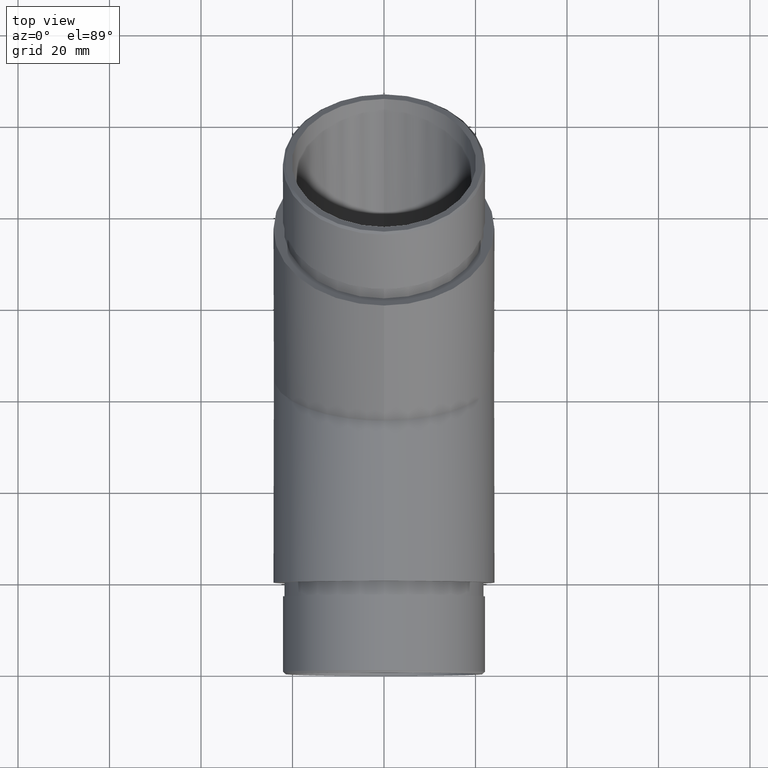
[diagram: clean part render]
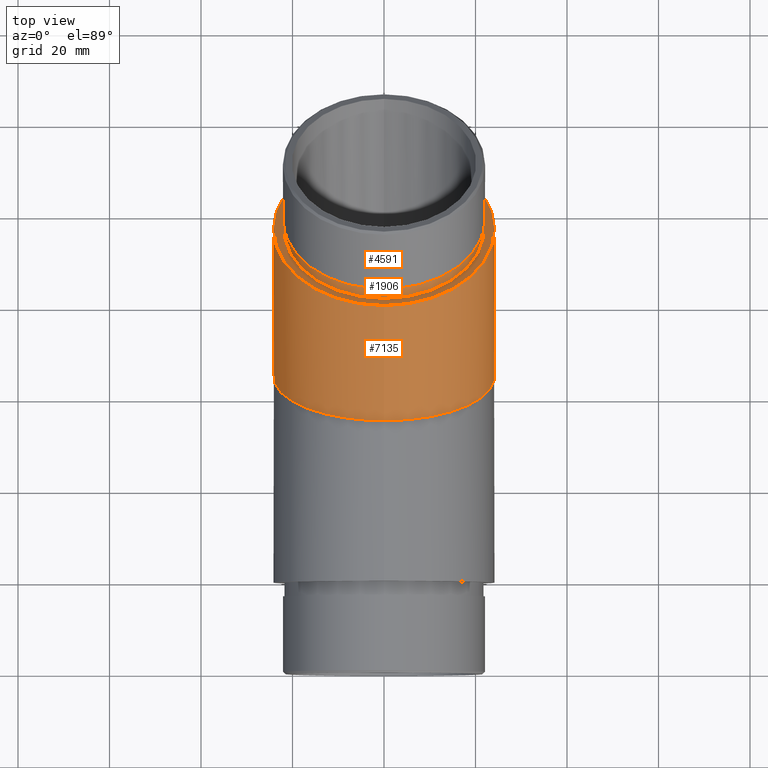
[diagram: same view with one multi-face feature highlighted, each face labeled with its STEP entity id]
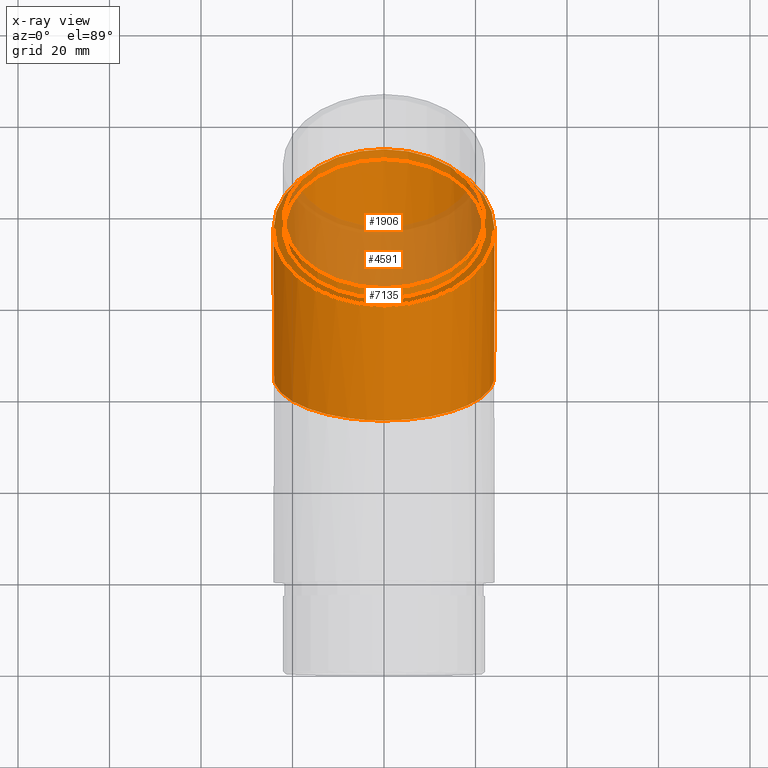
[diagram: x-ray of the same camera — body ghosted, the whole feature saturated]
A machine part, top view. The highlighted faces form ONE feature: a stepped (counterbored) hole: 2 coaxial cylindrical walls of radii 21.9 -> 24.15 mm joined by 1 annular planar shoulder face(s). The faces share edges in the B-rep.
The next image is the same camera in x-ray: the body ghosted and the whole hole feature saturated, so the bore chain is visible through the body.
Their STEP definitions:
[1] entity #7135 (Cylinder):
#733 = AXIS2_PLACEMENT_3D ( 'NONE', #6798, #1303, #2267 ) ;
#1090 = ORIENTED_EDGE ( 'NONE', *, *, #5459, .T. ) ;
#1303 = DIRECTION ( 'NONE',  ( -0.0000000000000000000, -0.7071067811865462400, -0.7071067811865489100 ) ) ;
#1443 = VERTEX_POINT ( 'NONE', #7430 ) ;
#1476 = CARTESIAN_POINT ( 'NONE',  ( 0.0000000000000000000, 44.99674246868973200, 0.0000000000000000000 ) ) ;
#1981 = CARTESIAN_POINT ( 'NONE',  ( 0.0000000000000000000, 34.99348493737945600, 24.15000000000000600 ) ) ;
#2025 = CIRCLE ( 'NONE', #733, 24.15000000000000600 ) ;
#2267 = DIRECTION ( 'NONE',  ( 0.0000000000000000000, -0.7071067811865490200, 0.7071067811865460200 ) ) ;
#2959 = FACE_OUTER_BOUND ( 'NONE', #6671, .T. ) ;
#4032 = CARTESIAN_POINT ( 'NONE',  ( 48.30000000000001100, 55.00000000000001400, -24.14999999999999900 ) ) ;
#4154 = DIRECTION ( 'NONE',  ( 0.0000000000000000000, -0.7071067811865487900, 0.7071067811865461300 ) ) ;
#4992 = CARTESIAN_POINT ( 'NONE',  ( 0.0000000000000000000, 34.99348493737945600, 24.15000000000000600 ) ) ;
#5083 = DIRECTION ( 'NONE',  ( 0.0000000000000000000, 0.7071067811865462400, 0.7071067811865487900 ) ) ;
#5411 = EDGE_CURVE ( 'NONE', #5739, #5739, #5693, .T. ) ;
#5459 = EDGE_CURVE ( 'NONE', #1443, #1443, #2025, .T. ) ;
#5693 =( BOUNDED_CURVE ( )  B_SPLINE_CURVE ( 3, ( #11411, #8616, #4032, #5759, #5803, #10416, #4992 ),
 .UNSPECIFIED., .T., .F. ) 
 B_SPLINE_CURVE_WITH_KNOTS ( ( 4, 3, 4 ),
 ( 0.0000000000000000000, 3.141592653589793100, 6.283185307179586200 ),
 .UNSPECIFIED. ) 
 CURVE ( )  GEOMETRIC_REPRESENTATION_ITEM ( )  RATIONAL_B_SPLINE_CURVE ( ( 1.000000000000000000, 0.3333333333333333700, 0.3333333333333333700, 1.000000000000000000, 0.3333333333333333700, 0.3333333333333333700, 1.000000000000000000 ) ) 
 REPRESENTATION_ITEM ( '' )  );
#5739 = VERTEX_POINT ( 'NONE', #1981 ) ;
#5759 = CARTESIAN_POINT ( 'NONE',  ( 2.957522019940858700E-015, 55.00000000000000700, -24.15000000000000600 ) ) ;
#5803 = CARTESIAN_POINT ( 'NONE',  ( -48.30000000000001100, 55.00000000000001400, -24.15000000000001600 ) ) ;
#6100 = EDGE_LOOP ( 'NONE', ( #8715 ) ) ;
#6671 = EDGE_LOOP ( 'NONE', ( #1090 ) ) ;
#6798 = CARTESIAN_POINT ( 'NONE',  ( 0.0000000000000000000, 76.81424419960490000, 31.81750173091528600 ) ) ;
#7135 = ADVANCED_FACE ( 'NONE', ( #10119, #2959 ), #8546, .T. ) ;
#7430 = CARTESIAN_POINT ( 'NONE',  ( 0.0000000000000000000, 59.73761543394974200, 48.89413049657037600 ) ) ;
#8546 = CYLINDRICAL_SURFACE ( 'NONE', #8835, 24.15000000000000600 ) ;
#8616 = CARTESIAN_POINT ( 'NONE',  ( 48.30000000000001100, 34.99348493737945600, 24.15000000000000900 ) ) ;
#8715 = ORIENTED_EDGE ( 'NONE', *, *, #5411, .T. ) ;
#8835 = AXIS2_PLACEMENT_3D ( 'NONE', #1476, #5083, #4154 ) ;
#10119 = FACE_OUTER_BOUND ( 'NONE', #6100, .T. ) ;
#10416 = CARTESIAN_POINT ( 'NONE',  ( -48.30000000000001100, 34.99348493737945600, 24.15000000000000900 ) ) ;
#11411 = CARTESIAN_POINT ( 'NONE',  ( 0.0000000000000000000, 34.99348493737945600, 24.15000000000000600 ) ) ;
[2] entity #1906 (Cylinder):
#335 = ORIENTED_EDGE ( 'NONE', *, *, #4897, .T. ) ;
#461 = CYLINDRICAL_SURFACE ( 'NONE', #1575, 21.89999999999999900 ) ;
#764 = DIRECTION ( 'NONE',  ( -0.0000000000000000000, -0.7071067811865459100, -0.7071067811865492400 ) ) ;
#1066 = FACE_OUTER_BOUND ( 'NONE', #8540, .T. ) ;
#1575 = AXIS2_PLACEMENT_3D ( 'NONE', #7055, #764, #9028 ) ;
#1906 = ADVANCED_FACE ( 'NONE', ( #9243, #1066 ), #461, .T. ) ;
#2210 = EDGE_LOOP ( 'NONE', ( #7681 ) ) ;
#2269 = EDGE_CURVE ( 'NONE', #2590, #2590, #9815, .T. ) ;
#2590 = VERTEX_POINT ( 'NONE', #4479 ) ;
#3142 = AXIS2_PLACEMENT_3D ( 'NONE', #11379, #8751, #11460 ) ;
#3247 = DIRECTION ( 'NONE',  ( 0.0000000000000000000, -0.7071067811865487900, 0.7071067811865463500 ) ) ;
#4479 = CARTESIAN_POINT ( 'NONE',  ( 0.0000000000000000000, 63.44992603517911100, 49.42446058246030600 ) ) ;
#4733 = CIRCLE ( 'NONE', #4880, 21.90000000000000200 ) ;
#4880 = AXIS2_PLACEMENT_3D ( 'NONE', #9608, #10522, #3247 ) ;
#4897 = EDGE_CURVE ( 'NONE', #7314, #7314, #4733, .T. ) ;
#7055 = CARTESIAN_POINT ( 'NONE',  ( 0.0000000000000000000, 78.93556454316454600, 33.93882207447495600 ) ) ;
#7314 = VERTEX_POINT ( 'NONE', #11157 ) ;
#7681 = ORIENTED_EDGE ( 'NONE', *, *, #2269, .T. ) ;
#8540 = EDGE_LOOP ( 'NONE', ( #335 ) ) ;
#8751 = DIRECTION ( 'NONE',  ( -0.0000000000000000000, -0.7071067811865459100, -0.7071067811865492400 ) ) ;
#9028 = DIRECTION ( 'NONE',  ( 0.0000000000000000000, 0.7071067811865492400, -0.7071067811865459100 ) ) ;
#9243 = FACE_OUTER_BOUND ( 'NONE', #2210, .T. ) ;
#9608 = CARTESIAN_POINT ( 'NONE',  ( 0.0000000000000000000, 76.81424419960488600, 31.81750173091529300 ) ) ;
#9815 = CIRCLE ( 'NONE', #3142, 21.89999999999999900 ) ;
#10522 = DIRECTION ( 'NONE',  ( 0.0000000000000000000, 0.7071067811865462400, 0.7071067811865489100 ) ) ;
#11157 = CARTESIAN_POINT ( 'NONE',  ( 0.0000000000000000000, 61.32860569161947200, 47.30314023890066000 ) ) ;
#11379 = CARTESIAN_POINT ( 'NONE',  ( 0.0000000000000000000, 78.93556454316454600, 33.93882207447495600 ) ) ;
#11460 = DIRECTION ( 'NONE',  ( 0.0000000000000000000, -0.7071067811865492400, 0.7071067811865458000 ) ) ;
[3] entity #4591 (Plane):
#569 = ORIENTED_EDGE ( 'NONE', *, *, #5459, .F. ) ;
#625 = CARTESIAN_POINT ( 'NONE',  ( 0.0000000000000000000, 76.81424419960488600, 31.81750173091529300 ) ) ;
#733 = AXIS2_PLACEMENT_3D ( 'NONE', #6798, #1303, #2267 ) ;
#1303 = DIRECTION ( 'NONE',  ( -0.0000000000000000000, -0.7071067811865462400, -0.7071067811865489100 ) ) ;
#1443 = VERTEX_POINT ( 'NONE', #7430 ) ;
#1475 = PLANE ( 'NONE',  #7339 ) ;
#1512 = EDGE_LOOP ( 'NONE', ( #569 ) ) ;
#2025 = CIRCLE ( 'NONE', #733, 24.15000000000000600 ) ;
#2267 = DIRECTION ( 'NONE',  ( 0.0000000000000000000, -0.7071067811865490200, 0.7071067811865460200 ) ) ;
#3247 = DIRECTION ( 'NONE',  ( 0.0000000000000000000, -0.7071067811865487900, 0.7071067811865463500 ) ) ;
#4524 = EDGE_LOOP ( 'NONE', ( #5329 ) ) ;
#4591 = ADVANCED_FACE ( 'NONE', ( #8353, #11489 ), #1475, .T. ) ;
#4733 = CIRCLE ( 'NONE', #4880, 21.90000000000000200 ) ;
#4880 = AXIS2_PLACEMENT_3D ( 'NONE', #9608, #10522, #3247 ) ;
#4897 = EDGE_CURVE ( 'NONE', #7314, #7314, #4733, .T. ) ;
#5275 = DIRECTION ( 'NONE',  ( 0.0000000000000000000, -0.7071067811865489100, 0.7071067811865462400 ) ) ;
#5329 = ORIENTED_EDGE ( 'NONE', *, *, #4897, .F. ) ;
#5459 = EDGE_CURVE ( 'NONE', #1443, #1443, #2025, .T. ) ;
#6798 = CARTESIAN_POINT ( 'NONE',  ( 0.0000000000000000000, 76.81424419960490000, 31.81750173091528600 ) ) ;
#7314 = VERTEX_POINT ( 'NONE', #11157 ) ;
#7339 = AXIS2_PLACEMENT_3D ( 'NONE', #625, #7929, #5275 ) ;
#7430 = CARTESIAN_POINT ( 'NONE',  ( 0.0000000000000000000, 59.73761543394974200, 48.89413049657037600 ) ) ;
#7929 = DIRECTION ( 'NONE',  ( 0.0000000000000000000, 0.7071067811865462400, 0.7071067811865489100 ) ) ;
#8353 = FACE_BOUND ( 'NONE', #4524, .T. ) ;
#9608 = CARTESIAN_POINT ( 'NONE',  ( 0.0000000000000000000, 76.81424419960488600, 31.81750173091529300 ) ) ;
#10522 = DIRECTION ( 'NONE',  ( 0.0000000000000000000, 0.7071067811865462400, 0.7071067811865489100 ) ) ;
#11157 = CARTESIAN_POINT ( 'NONE',  ( 0.0000000000000000000, 61.32860569161947200, 47.30314023890066000 ) ) ;
#11489 = FACE_OUTER_BOUND ( 'NONE', #1512, .T. ) ;